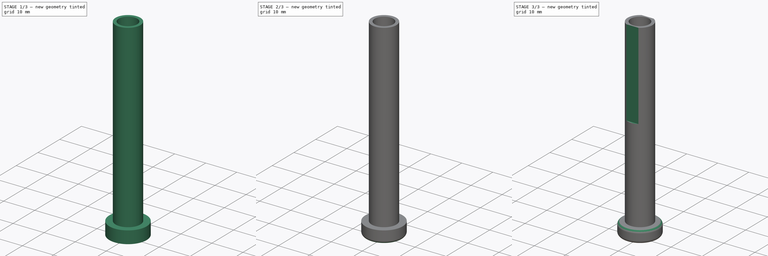
[diagram: build sequence overview — one tinted view per stage of 3, left to right]
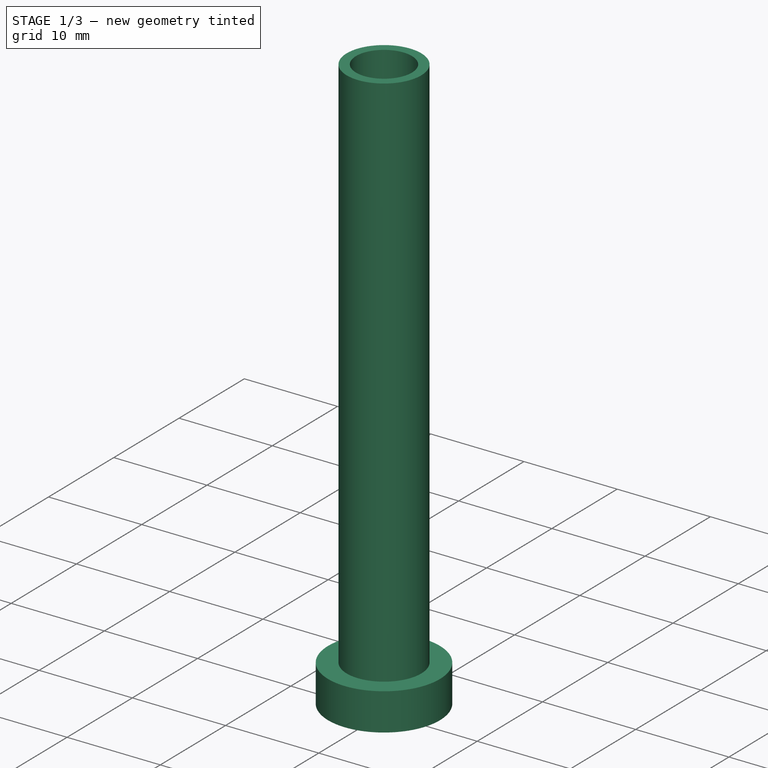
[diagram: stage 1 of 3 — iso view after this stage's code; geometry added in this stage tinted green]
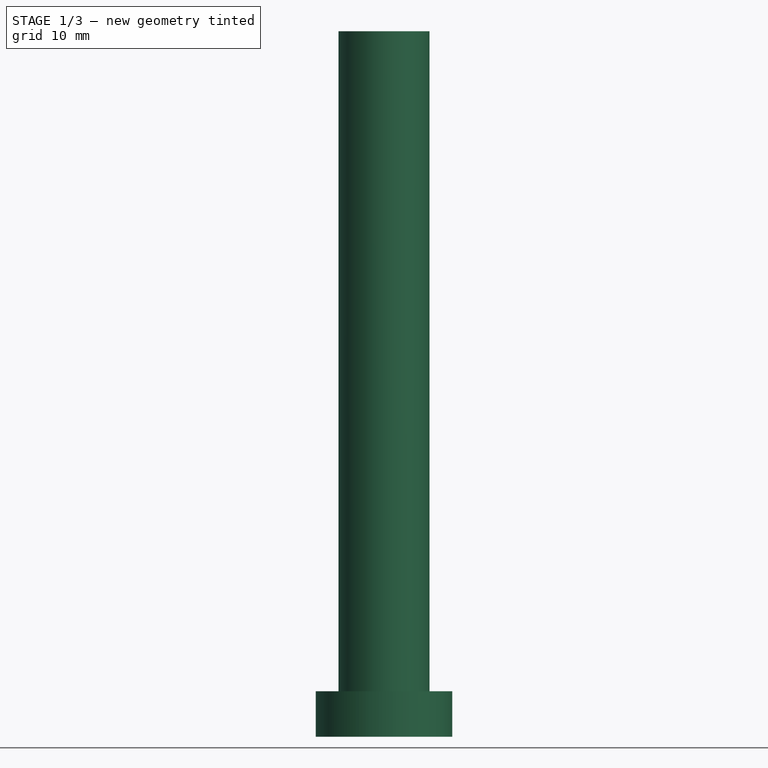
[diagram: stage 1 of 3 — front view after this stage's code; geometry added in this stage tinted green]
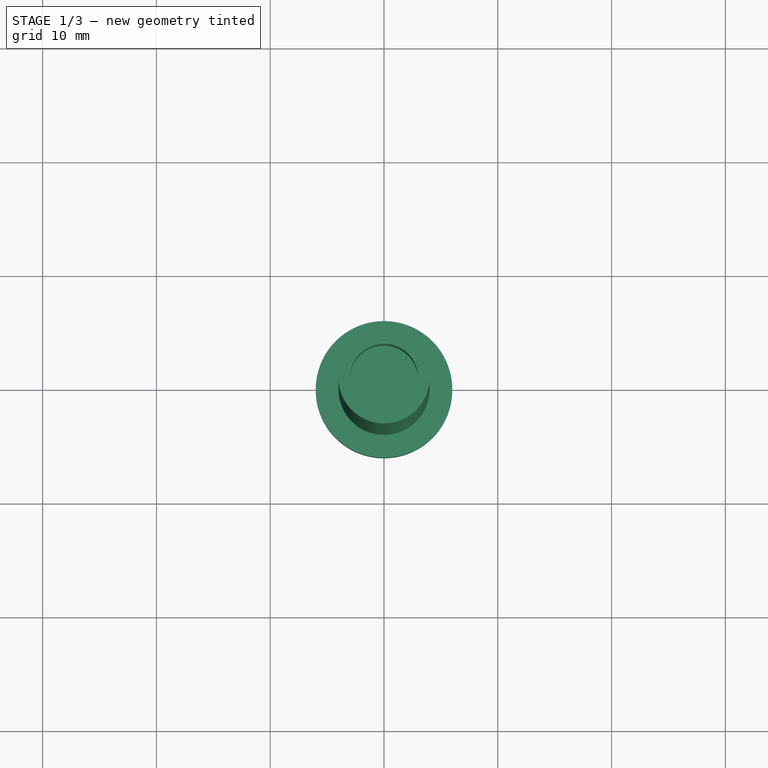
[diagram: stage 1 of 3 — top view after this stage's code; geometry added in this stage tinted green]
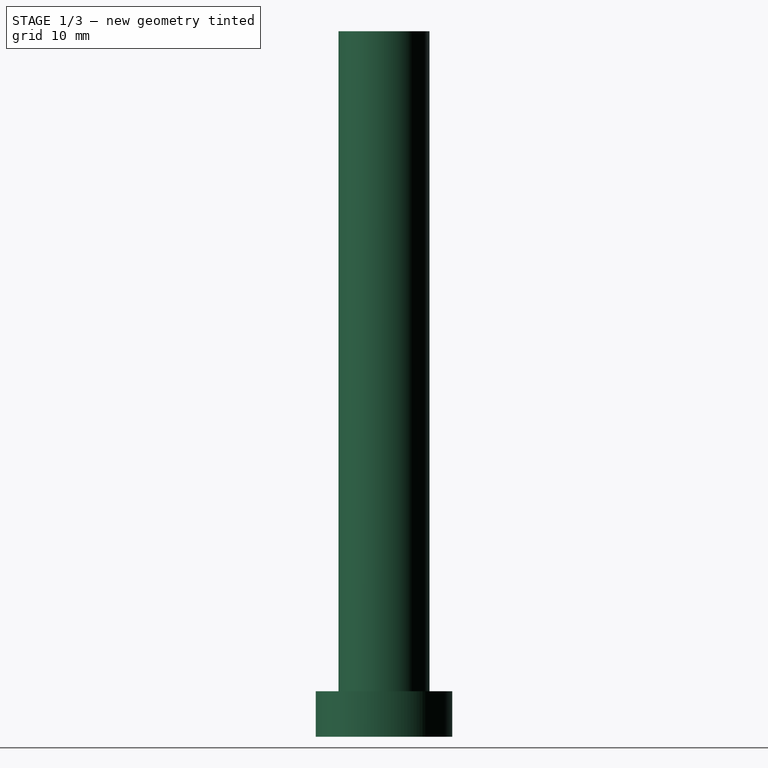
[diagram: stage 1 of 3 — right view after this stage's code; geometry added in this stage tinted green]
FCSTD DOCUMENT  (FreeCAD 0.20R29177 +426 (Git))
Label: Mag_Shaft
License: All rights reserved
LicenseURL: http://en.wikipedia.org/wiki/All_rights_reserved
objects: Sketcher::SketchObject×3, PartDesign::Pocket×2, PartDesign::Fillet×2, PartDesign::Revolution×1, PartDesign::Body×1
note: 14 computed .brp shape members not serialized (recipe doc carries the construction recipe); baked Part::Feature solids carry a one-line shape summary decoded from their .brp

FEATURE [Sketcher::SketchObject] Sketch
  FullyConstrained = true
  MapMode = 5
  Placement = pos=(0,0,0) rot=(1,0,0;1.5708rad)
  Support = -> [XZ_Plane]
  sketch-geometry (8):
    g0: LineSegment StartX=-2.2 StartY=0 StartZ=0 EndX=-6 EndY=0 EndZ=0
    g1: LineSegment StartX=-6 StartY=0 StartZ=0 EndX=-6 EndY=4 EndZ=0
    g2: LineSegment StartX=-6 StartY=4 StartZ=0 EndX=-4 EndY=4 EndZ=0
    g3: LineSegment StartX=-4 StartY=4 StartZ=0 EndX=-4 EndY=62 EndZ=0
    g4: LineSegment StartX=-4 StartY=62 StartZ=0 EndX=0 EndY=62 EndZ=0
    g5: LineSegment StartX=0 StartY=62 StartZ=0 EndX=0 EndY=2 EndZ=0
    g6: LineSegment StartX=0 StartY=2 StartZ=0 EndX=-2.2 EndY=2 EndZ=0
    g7: LineSegment StartX=-2.2 StartY=2 StartZ=0 EndX=-2.2 EndY=0 EndZ=0
  constraints (24):
    c: Coincident(g1,g0)
    c: Coincident(g2,g1)
    c: Coincident(g3,g2)
    c: Vertical(g3)
    c: Coincident(g4,g3)
    c: Horizontal(g4)
    c: Coincident(g5,g4)
    c: Vertical(g5)
    c: Coincident(g6,g5)
    c: Coincident(g7,g6)
    c: Coincident(g7,g0)
    c: Vertical(g7)
    c: Vertical(g1)
    c: DistanceX(g0,g-1) = 2.2
    c: Horizontal(g6)
    c: Horizontal(g2)
    c: Horizontal(g0)
    c: Horizontal(g0,g-1)
    c: Vertical(g-1,g5)
    c: DistanceX(g4,g4) = 4
    c: DistanceY(g5,g5) = 60
    c: DistanceY(g7,g7) = 2
    c: DistanceY(g6,g1) = 2
    c: DistanceX(g0,g-1) = 6
FEATURE [PartDesign::Revolution] Revolution
  Angle = 360
  Axis = (0,-2e-16,1)
  Base = (0,0,0)
  Placement = pos=(0,0,0) rot=(1,0,0;1.5708rad)
  Profile = -> Sketch
  ReferenceAxis = -> Sketch [V_Axis]
FEATURE [Sketcher::SketchObject] Sketch001
  FullyConstrained = true
  MapMode = 5
  Placement = pos=(0,1.38e-14,62) rot=(0,0,1;3.14159rad)
  Support = -> [Revolution]
  sketch-geometry (1):
    g0: Circle CenterX=0 CenterY=0 CenterZ=0 NormalX=0 NormalY=0 NormalZ=1 AngleXU=0 Radius=3
  constraints (2):
    c: Coincident(g0,g-1)
    c: Diameter(g0) = 6
FEATURE [PartDesign::Pocket] Pocket
  BaseFeature = -> Revolution
  Direction = (0,-2e-16,-1)
  Length = 10
  Length2 = 5
  Placement = pos=(0,0,0) rot=(1,0,0;1.5708rad)
  Profile = -> Sketch001
  ReferenceAxis = -> Sketch001 [N_Axis]
  Type = 0
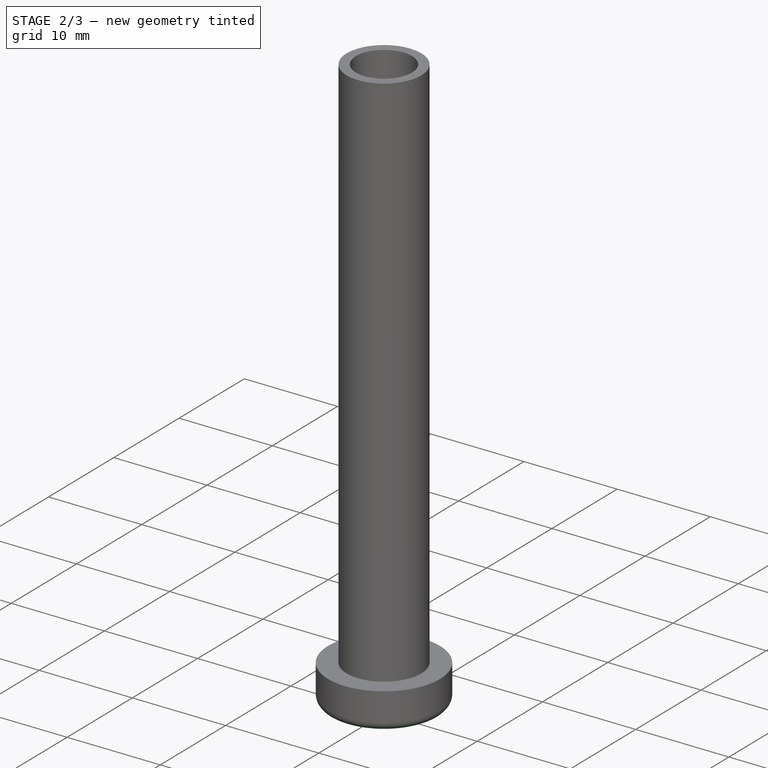
[diagram: stage 2 of 3 — iso view after this stage's code; geometry added in this stage tinted green]
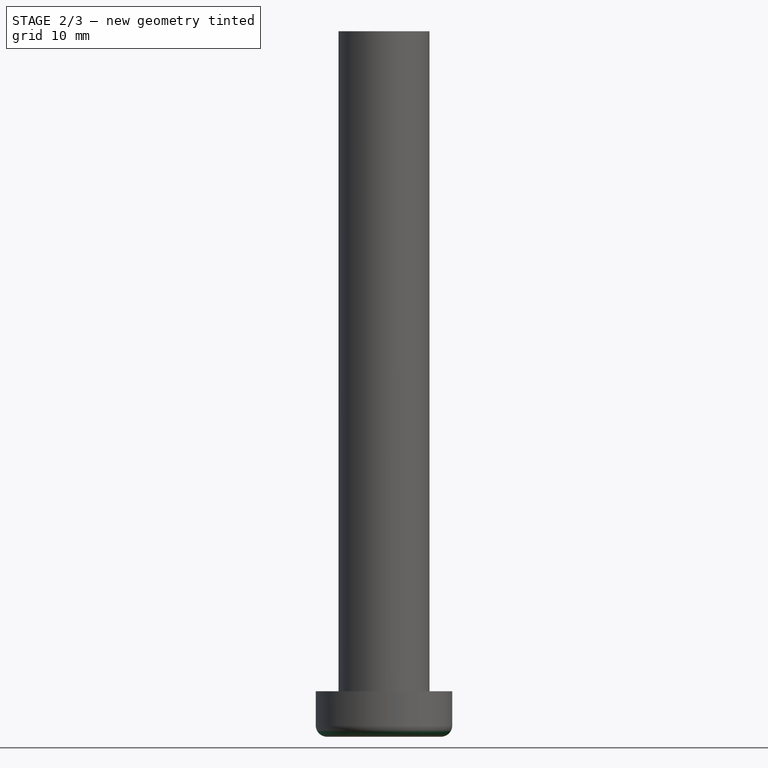
[diagram: stage 2 of 3 — front view after this stage's code; geometry added in this stage tinted green]
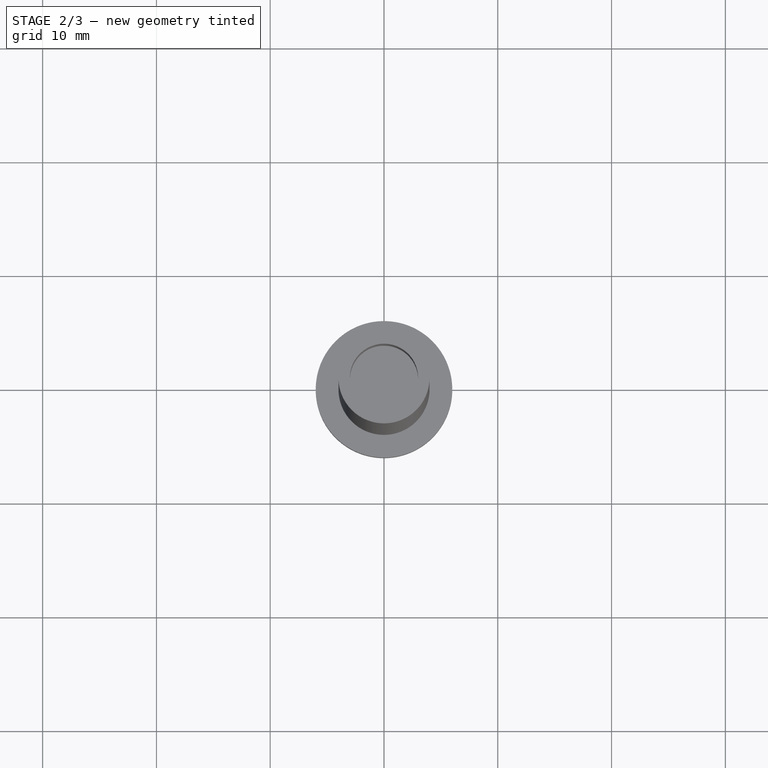
[diagram: stage 2 of 3 — top view after this stage's code; geometry added in this stage tinted green]
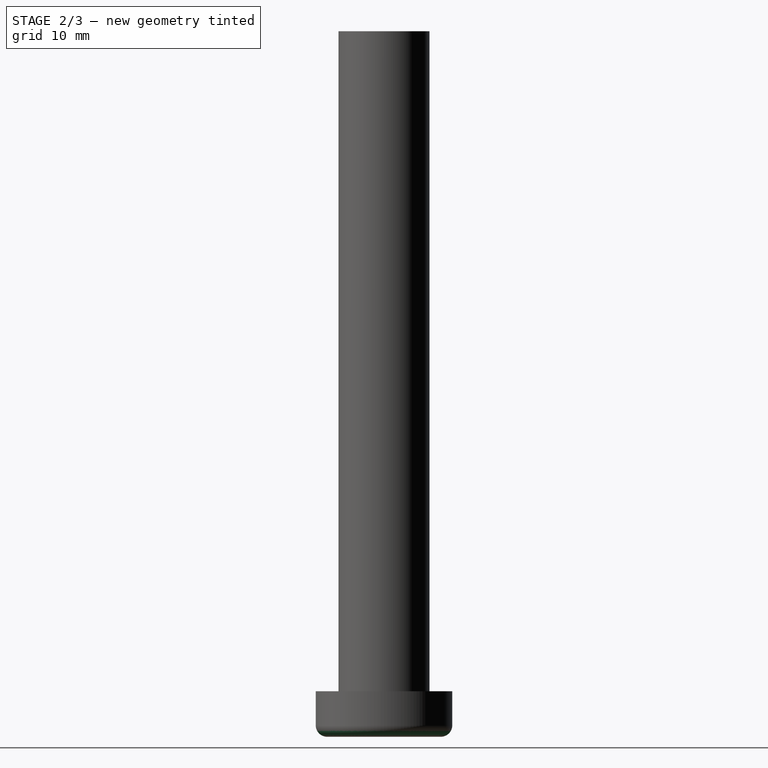
[diagram: stage 2 of 3 — right view after this stage's code; geometry added in this stage tinted green]
FEATURE [PartDesign::Fillet] Fillet
  Base = -> Pocket [Edge1,Edge2]
  BaseFeature = -> Pocket
  Placement = pos=(0,0,0) rot=(1,0,0;1.5708rad)
  Radius = 1
  SupportTransform = false
  UseAllEdges = false
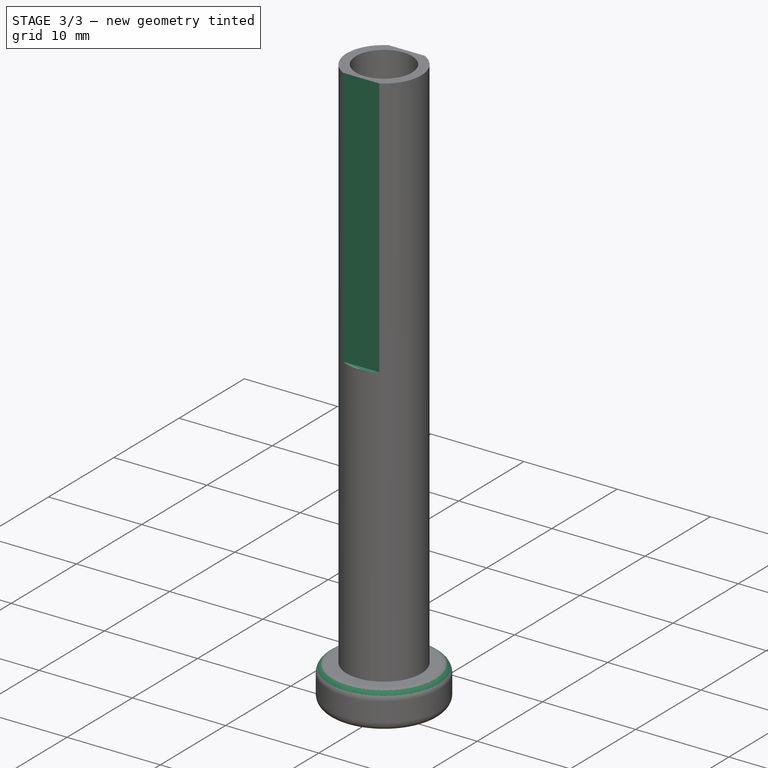
[diagram: stage 3 of 3 — iso view after this stage's code; geometry added in this stage tinted green]
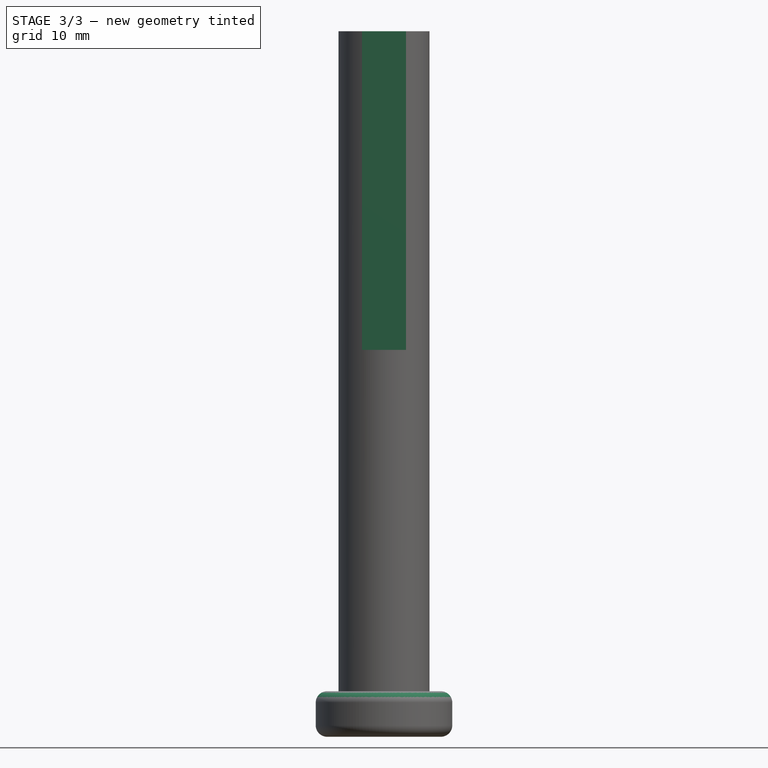
[diagram: stage 3 of 3 — front view after this stage's code; geometry added in this stage tinted green]
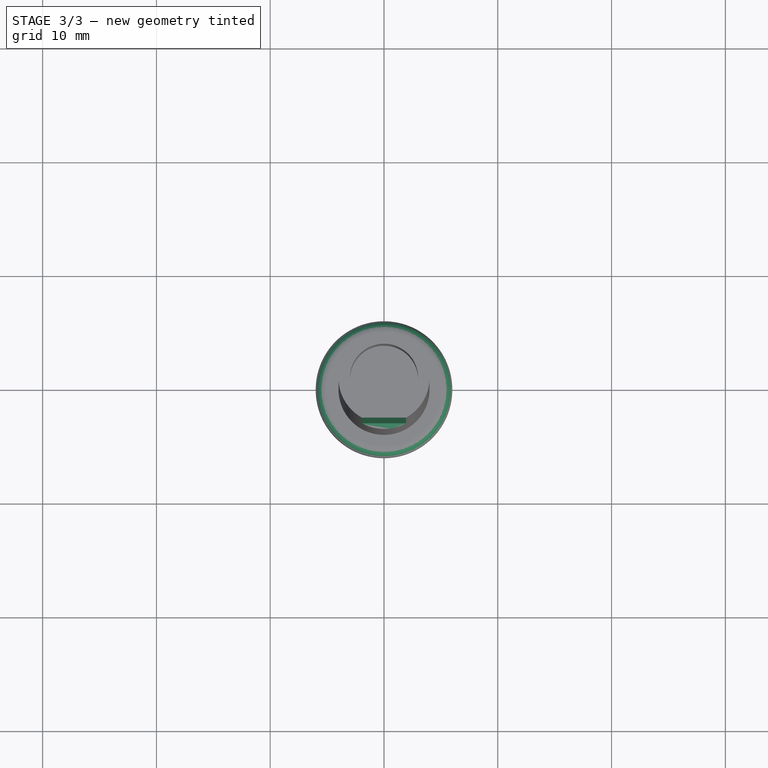
[diagram: stage 3 of 3 — top view after this stage's code; geometry added in this stage tinted green]
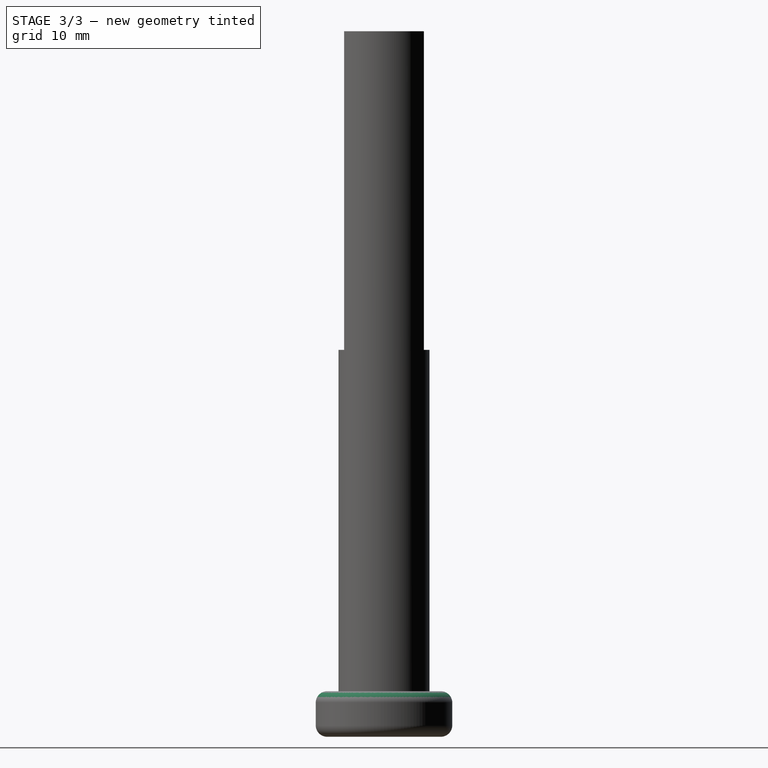
[diagram: stage 3 of 3 — right view after this stage's code; geometry added in this stage tinted green]
FEATURE [PartDesign::Fillet] Fillet001
  Base = -> Fillet [Edge10]
  BaseFeature = -> Fillet
  Placement = pos=(0,0,0) rot=(1,0,0;1.5708rad)
  Radius = 1
  SupportTransform = false
  UseAllEdges = false
FEATURE [Sketcher::SketchObject] Sketch002
  FullyConstrained = true
  MapMode = 5
  Placement = pos=(0,2.07e-14,62) rot=(0,0,1;3.14159rad)
  Support = -> [Fillet001]
  sketch-geometry (10):
    g0: LineSegment StartX=5 StartY=-3.5 StartZ=0 EndX=5 EndY=-8.5 EndZ=0
    g1: LineSegment StartX=5 StartY=-8.5 StartZ=0 EndX=-5 EndY=-8.5 EndZ=0
    g2: LineSegment StartX=-5 StartY=-8.5 StartZ=0 EndX=-5 EndY=-3.5 EndZ=0
    g3: LineSegment StartX=-5 StartY=-3.5 StartZ=0 EndX=5 EndY=-3.5 EndZ=0
    g4: GeomPoint X=0 Y=-6 Z=0
    g5: LineSegment StartX=-5 StartY=3.5 StartZ=0 EndX=-5 EndY=8.5 EndZ=0
    g6: LineSegment StartX=-5 StartY=8.5 StartZ=0 EndX=5 EndY=8.5 EndZ=0
    g7: LineSegment StartX=5 StartY=8.5 StartZ=0 EndX=5 EndY=3.5 EndZ=0
    g8: LineSegment StartX=5 StartY=3.5 StartZ=0 EndX=-5 EndY=3.5 EndZ=0
    g9: GeomPoint X=0 Y=6 Z=0
  constraints (26):
    c: Coincident(g0,g1)
    c: Coincident(g1,g2)
    c: Coincident(g2,g3)
    c: Coincident(g3,g0)
    c: Horizontal(g1)
    c: Horizontal(g3)
    c: Vertical(g0)
    c: Vertical(g2)
    c: Symmetric(g1,g0,g4)
    c: Coincident(g5,g6)
    c: Coincident(g6,g7)
    c: Coincident(g7,g8)
    c: Coincident(g8,g5)
    c: Horizontal(g6)
    c: Horizontal(g8)
    c: Vertical(g5)
    c: Vertical(g7)
    c: Symmetric(g6,g5,g9)
    c: Vertical(g9,g4)
    c: Vertical(g4,g-1)
    c: DistanceY(g2,g-1) = 3.5
    c: DistanceY(g-1,g5) = 3.5
    c: DistanceX(g8,g8) = 10
    c: Equal(g3,g8)
    c: Equal(g0,g7)
    c: DistanceY(g7,g7) = 5
FEATURE [PartDesign::Pocket] Pocket001
  BaseFeature = -> Fillet001
  Direction = (0,-3e-16,-1)
  Length = 0
  Length2 = 5
  Offset = -30
  Placement = pos=(0,0,0) rot=(1,0,0;1.5708rad)
  Profile = -> Sketch002
  ReferenceAxis = -> Sketch002 [N_Axis]
  Type = 3
  UpToFace = -> Fillet001 [Face4]
FEATURE [PartDesign::Body] Body
  Group = -> [Sketch,Revolution,Sketch001,Pocket,Fillet,Fillet001,Sketch002,Pocket001]
  Origin = -> Origin
  Tip = -> Pocket001
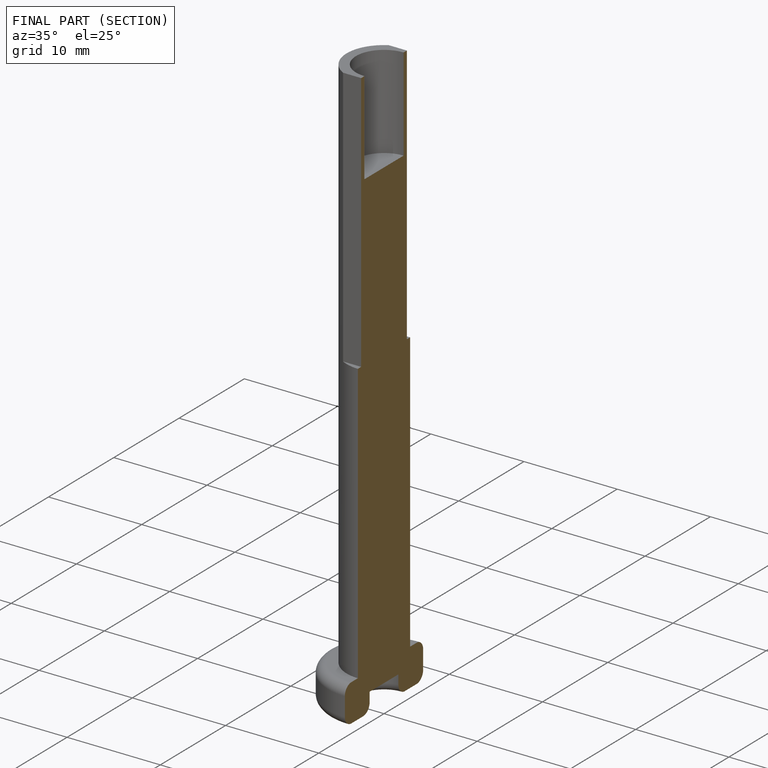
[diagram: finished part — half-section view (interior)]
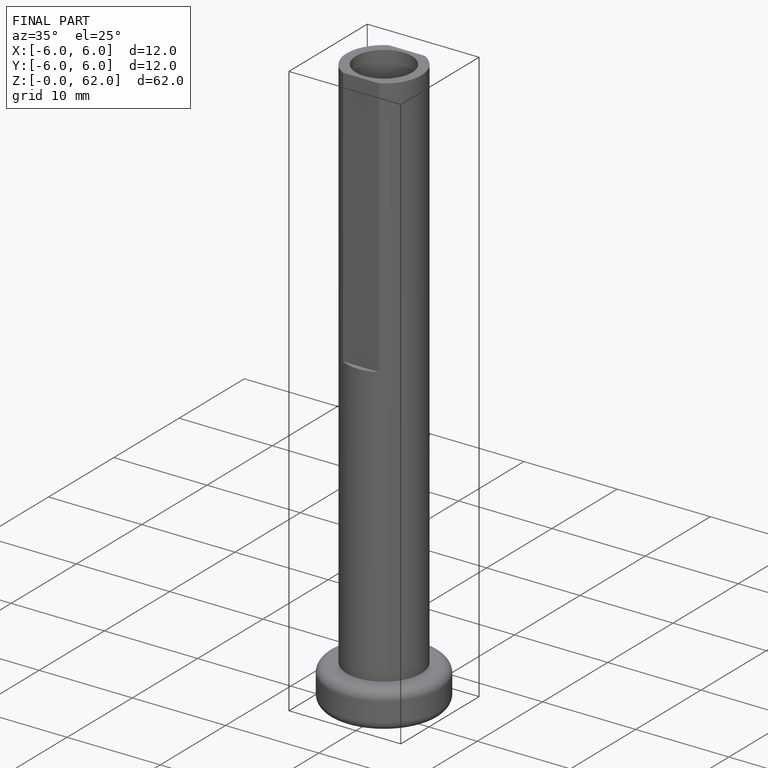
[diagram: finished part — iso view with bounding-box wireframe]
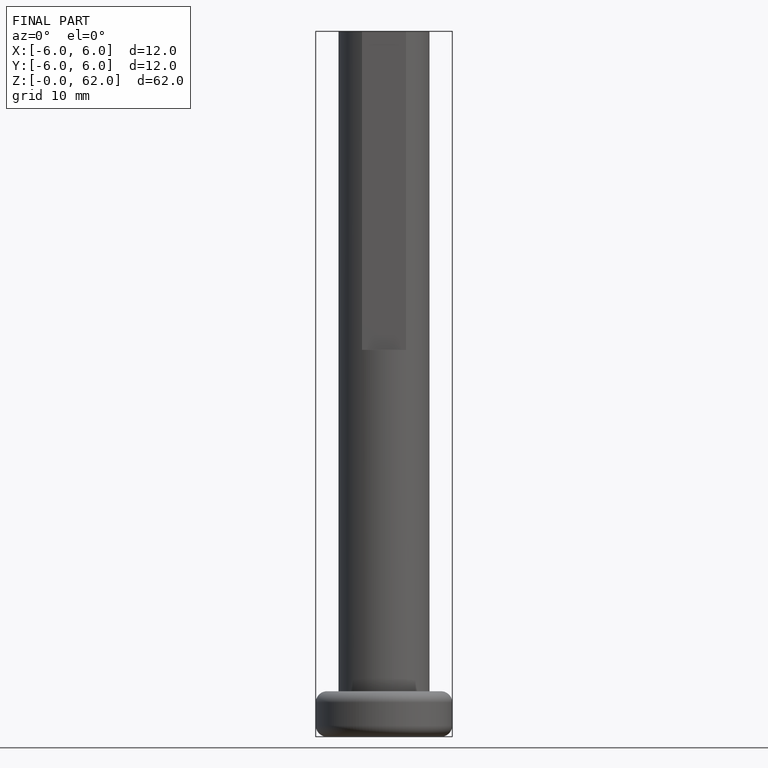
[diagram: finished part — front view with bounding-box wireframe]
